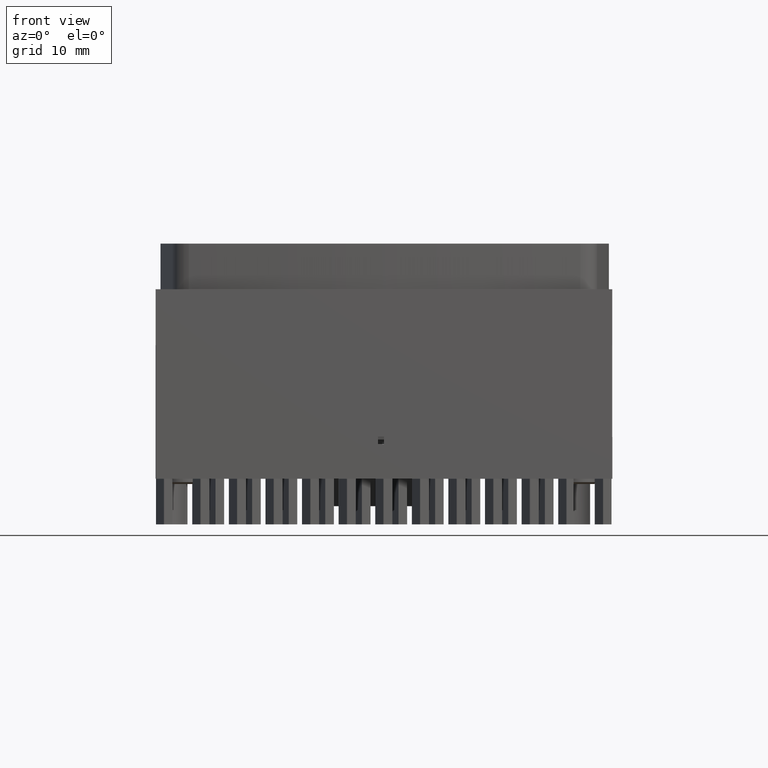
[diagram: clean part render]
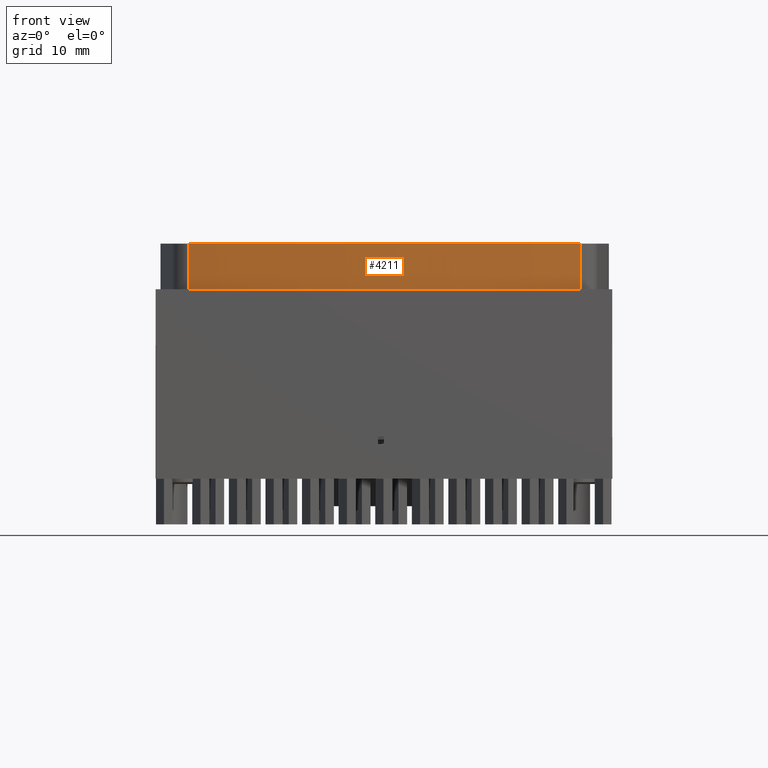
[diagram: same view with one face highlighted and labeled with its STEP entity id]
A machine part, front view. The second image highlights one B-rep face of the part: STEP entity #4211.
In plain terms, the highlighted cylindrical surface (partial cylindrical patch) has radius 218 mm, axis along (0, 0, -1).
Its self-contained STEP definition (entity closure, byte-faithful):
#4211=ADVANCED_FACE('',(#7396),#6957,.T.);
#6957=CYLINDRICAL_SURFACE('',#51798,218.);
#7396=FACE_OUTER_BOUND('',#9861,.T.);
#9861=EDGE_LOOP('',(#25178,#25179,#25180,#25181));
#13338=LINE('',#69188,#19219);
#13339=LINE('',#69192,#19220);
#19219=VECTOR('',#55576,1.);
#19220=VECTOR('',#55579,1.);
#25178=ORIENTED_EDGE('',*,*,#43827,.T.);
#25179=ORIENTED_EDGE('',*,*,#43828,.T.);
#25180=ORIENTED_EDGE('',*,*,#43829,.F.);
#25181=ORIENTED_EDGE('',*,*,#43830,.T.);
#39112=VERTEX_POINT('',#69186);
#39113=VERTEX_POINT('',#69187);
#39114=VERTEX_POINT('',#69189);
#39115=VERTEX_POINT('',#69191);
#43827=EDGE_CURVE('',#39112,#39113,#50789,.T.);
#43828=EDGE_CURVE('',#39113,#39114,#13338,.T.);
#43829=EDGE_CURVE('',#39115,#39114,#50790,.T.);
#43830=EDGE_CURVE('',#39115,#39112,#13339,.T.);
#50789=CIRCLE('',#51796,218.);
#50790=CIRCLE('',#51797,218.);
#51796=AXIS2_PLACEMENT_3D('',#69185,#55574,#55575);
#51797=AXIS2_PLACEMENT_3D('',#69190,#55577,#55578);
#51798=AXIS2_PLACEMENT_3D('',#69193,#55580,#55581);
#55574=DIRECTION('',(0.,0.,-1.));
#55575=DIRECTION('',(1.,1.27319154200133E-016,0.));
#55576=DIRECTION('',(0.,0.,-1.));
#55577=DIRECTION('',(0.,0.,-1.));
#55578=DIRECTION('',(1.,1.27319154200133E-016,0.));
#55579=DIRECTION('',(0.,0.,1.));
#55580=DIRECTION('',(0.,0.,1.));
#55581=DIRECTION('',(1.,0.,0.));
#69185=CARTESIAN_POINT('',(30.3964500000581,-158.499999999993,0.));
#69186=CARTESIAN_POINT('',(4.40805619856042,57.9453819965247,0.));
#69187=CARTESIAN_POINT('',(55.7691802380963,58.0184162150439,0.));
#69188=CARTESIAN_POINT('',(55.7691802380963,58.0184162150439,-6.));
#69189=CARTESIAN_POINT('',(55.7691802380963,58.0184162150439,-6.));
#69190=CARTESIAN_POINT('',(30.3964500000581,-158.499999999993,-6.));
#69191=CARTESIAN_POINT('',(4.40805619856042,57.9453819965247,-6.));
#69192=CARTESIAN_POINT('',(4.40805619856041,57.9453819965247,-6.));
#69193=CARTESIAN_POINT('',(30.3964500000581,-158.499999999993,-6.));